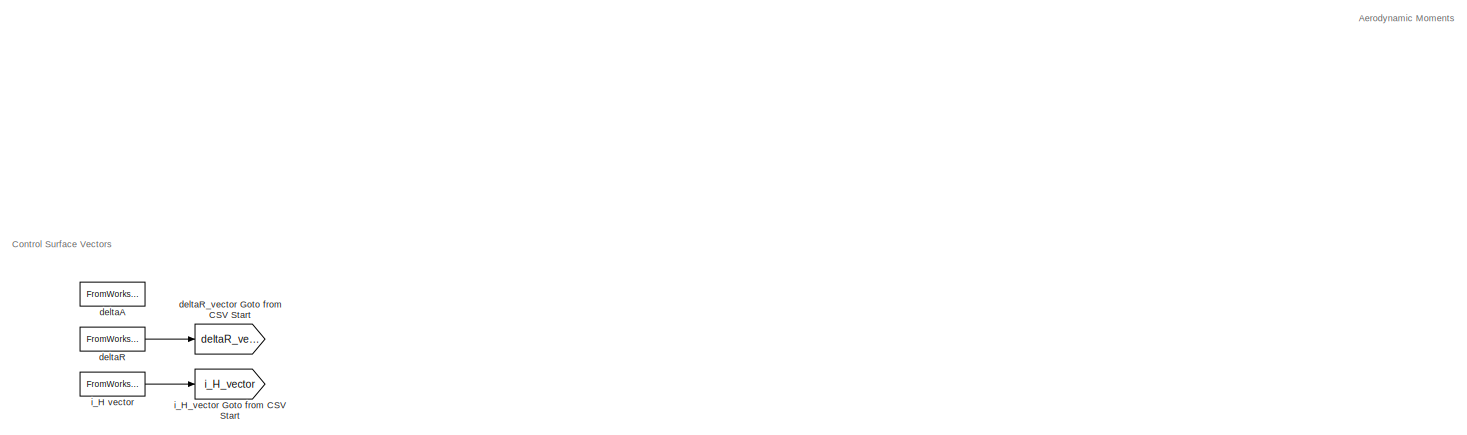
[diagram: root canvas - part 1/5, top center region]
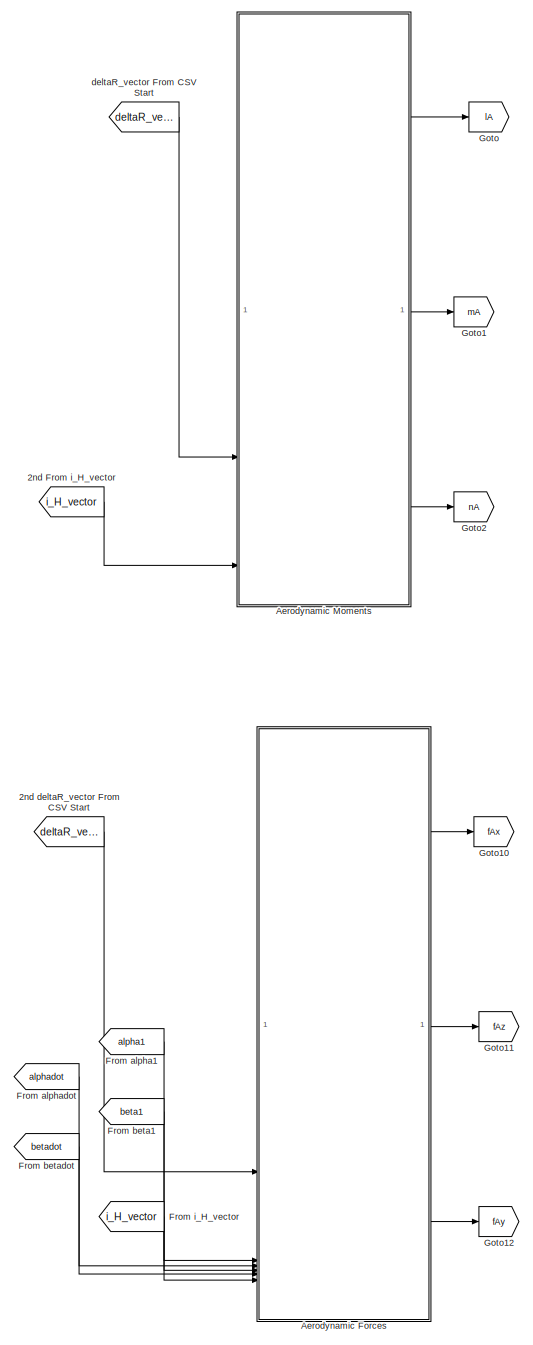
[diagram: root canvas - part 2/5, right side, full height]
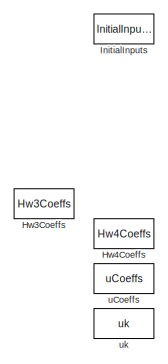
[diagram: root canvas - part 3/5, middle left region]
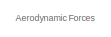
[diagram: root canvas - part 4/5, middle right region]
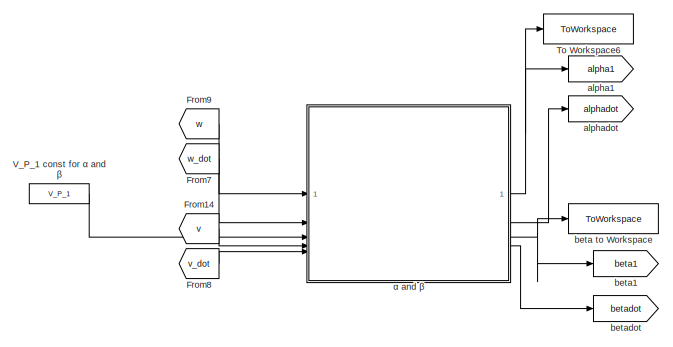
[diagram: root canvas - part 5/5, bottom right region]
MODEL slx_774c7080eb48
KIND model
CONFIG AbsTol = auto
CONFIG EnableMultiTasking = off
CONFIG FixedStep = auto
CONFIG MaxStep = auto
CONFIG MinStep = auto
CONFIG RelTol = 1e-3
CONFIG SampleTimeConstraint = Unconstrained
CONFIG SolverName = VariableStepAuto
CONFIG StartTime = 0.0
CONFIG StopTime = 10.0
BLOCK [From] 2nd From i_H_vector
  GotoTag = i_H_vector
BLOCK [From] 2nd deltaR_vector From CSV Start
  GotoTag = deltaR_vector
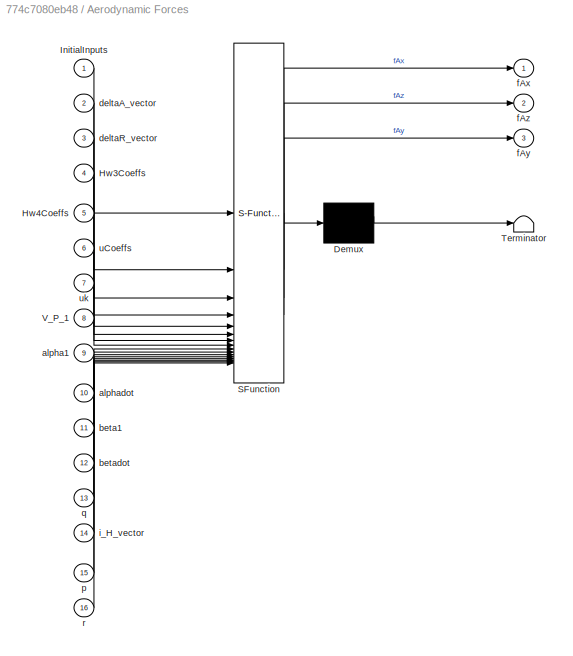
BLOCK [SubSystem] Aerodynamic Forces
  ErrorFcn = Stateflow.Translate.translate
  PermitHierarchicalResolution = ExplicitOnly
  SFBlockType = MATLAB Function
  TreatAsAtomicUnit = on
BLOCK [Demux] Aerodynamic Forces/ Demux 
  Outputs = 1
BLOCK [S-Function] Aerodynamic Forces/ SFunction 
  EnableBusSupport = on
  FunctionName = sf_sfun
  PortCounts = [16 4]
  SFcnIsStateOwnerBlock = off
  SFunctionDeploymentMode = off
  Tag = Stateflow S-Function 13
BLOCK [Terminator] Aerodynamic Forces/ Terminator 
BLOCK [Inport] Aerodynamic Forces/Hw3Coeffs
  Port = 4
BLOCK [Inport] Aerodynamic Forces/Hw4Coeffs
  Port = 5
BLOCK [Inport] Aerodynamic Forces/InitialInputs
BLOCK [Inport] Aerodynamic Forces/V_P_1
  Port = 8
BLOCK [Inport] Aerodynamic Forces/alpha1
  Port = 9
BLOCK [Inport] Aerodynamic Forces/alphadot
  Port = 10
BLOCK [Inport] Aerodynamic Forces/beta1
  Port = 11
BLOCK [Inport] Aerodynamic Forces/betadot
  Port = 12
BLOCK [Inport] Aerodynamic Forces/deltaA_vector
  Port = 2
BLOCK [Inport] Aerodynamic Forces/deltaR_vector
  Port = 3
BLOCK [Outport] Aerodynamic Forces/fAx
BLOCK [Outport] Aerodynamic Forces/fAy
  Port = 3
BLOCK [Outport] Aerodynamic Forces/fAz
  Port = 2
BLOCK [Inport] Aerodynamic Forces/i_H_vector
  Port = 14
BLOCK [Inport] Aerodynamic Forces/p
  Port = 15
BLOCK [Inport] Aerodynamic Forces/q
  Port = 13
BLOCK [Inport] Aerodynamic Forces/r
  Port = 16
BLOCK [Inport] Aerodynamic Forces/uCoeffs
  Port = 6
BLOCK [Inport] Aerodynamic Forces/uk
  Port = 7
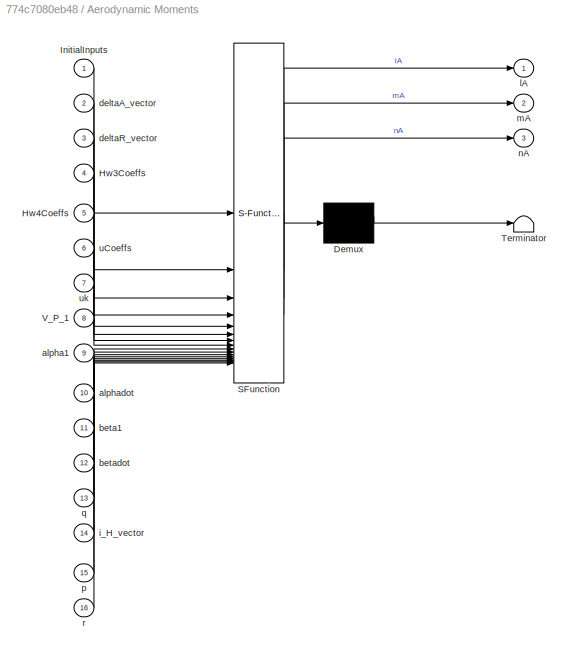
BLOCK [SubSystem] Aerodynamic Moments
  ErrorFcn = Stateflow.Translate.translate
  PermitHierarchicalResolution = ExplicitOnly
  SFBlockType = MATLAB Function
  TreatAsAtomicUnit = on
BLOCK [Demux] Aerodynamic Moments/ Demux 
  Outputs = 1
BLOCK [S-Function] Aerodynamic Moments/ SFunction 
  EnableBusSupport = on
  FunctionName = sf_sfun
  PortCounts = [16 4]
  SFcnIsStateOwnerBlock = off
  SFunctionDeploymentMode = off
  Tag = Stateflow S-Function 3
BLOCK [Terminator] Aerodynamic Moments/ Terminator 
BLOCK [Inport] Aerodynamic Moments/Hw3Coeffs
  Port = 4
BLOCK [Inport] Aerodynamic Moments/Hw4Coeffs
  Port = 5
BLOCK [Inport] Aerodynamic Moments/InitialInputs
BLOCK [Inport] Aerodynamic Moments/V_P_1
  Port = 8
BLOCK [Inport] Aerodynamic Moments/alpha1
  Port = 9
BLOCK [Inport] Aerodynamic Moments/alphadot
  Port = 10
BLOCK [Inport] Aerodynamic Moments/beta1
  Port = 11
BLOCK [Inport] Aerodynamic Moments/betadot
  Port = 12
BLOCK [Inport] Aerodynamic Moments/deltaA_vector
  Port = 2
BLOCK [Inport] Aerodynamic Moments/deltaR_vector
  Port = 3
BLOCK [Inport] Aerodynamic Moments/i_H_vector
  Port = 14
BLOCK [Outport] Aerodynamic Moments/lA
BLOCK [Outport] Aerodynamic Moments/mA
  Port = 2
BLOCK [Outport] Aerodynamic Moments/nA
  Port = 3
BLOCK [Inport] Aerodynamic Moments/p
  Port = 15
BLOCK [Inport] Aerodynamic Moments/q
  Port = 13
BLOCK [Inport] Aerodynamic Moments/r
  Port = 16
BLOCK [Inport] Aerodynamic Moments/uCoeffs
  Port = 6
BLOCK [Inport] Aerodynamic Moments/uk
  Port = 7
BLOCK [From] From alpha1
  GotoTag = alpha1
BLOCK [From] From alphadot
  GotoTag = alphadot
BLOCK [From] From beta1
  GotoTag = beta1
BLOCK [From] From betadot
  GotoTag = betadot
BLOCK [From] From i_H_vector
  GotoTag = i_H_vector
BLOCK [From] From14
  GotoTag = v
BLOCK [From] From7
  GotoTag = w_dot
BLOCK [From] From8
  GotoTag = v_dot
BLOCK [From] From9
  GotoTag = w
BLOCK [Goto] Goto
  GotoTag = lA
BLOCK [Goto] Goto1
  GotoTag = mA
BLOCK [Goto] Goto10
  GotoTag = fAx
BLOCK [Goto] Goto11
  GotoTag = fAz
BLOCK [Goto] Goto12
  GotoTag = fAy
BLOCK [Goto] Goto2
  GotoTag = nA
BLOCK [Constant] Hw3Coeffs
  Value = Hw3Coeffs
BLOCK [Constant] Hw4Coeffs
  Value = Hw4Coeffs
BLOCK [Constant] InitialInputs
  Value = InitialInputs
BLOCK [ToWorkspace] To Workspace6
  MaxDataPoints = inf
  SampleTime = -1
  Save2DSignal = 2-D array (concatenate along first dimension)
  VariableName = alpha1
BLOCK [Constant] V_P_1 const for α and β
  Value = V_P_1
BLOCK [Goto] alpha1
  GotoTag = alpha1
BLOCK [Goto] alphadot
  GotoTag = alphadot
BLOCK [ToWorkspace] beta to Workspace
  MaxDataPoints = inf
  SampleTime = -1
  Save2DSignal = 2-D array (concatenate along first dimension)
  VariableName = beta1
BLOCK [Goto] beta1
  GotoTag = beta1
BLOCK [Goto] betadot
  GotoTag = betadot
BLOCK [FromWorkspace] deltaA 
  OutDataTypeStr = double
  VariableName = deltaA_vector
BLOCK [FromWorkspace] deltaR 
  OutDataTypeStr = double
  VariableName = deltaR_vector
BLOCK [From] deltaR_vector From CSV Start
  GotoTag = deltaR_vector
BLOCK [Goto] deltaR_vector Goto from CSV Start
  GotoTag = deltaR_vector
BLOCK [FromWorkspace] i_H vector 
  VariableName = i_H_vector
BLOCK [Goto] i_H_vector Goto from CSV Start
  GotoTag = i_H_vector
BLOCK [Constant] uCoeffs
  Value = uCoeffs
BLOCK [Constant] uk
  Value = uk
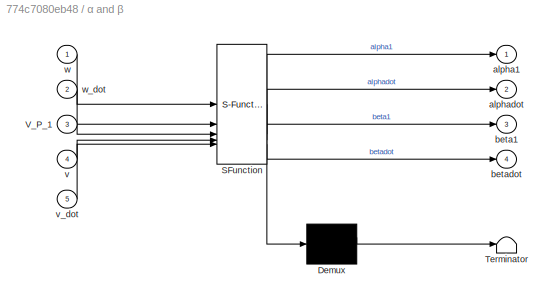
BLOCK [SubSystem] α and β
  ErrorFcn = Stateflow.Translate.translate
  PermitHierarchicalResolution = ExplicitOnly
  SFBlockType = MATLAB Function
  TreatAsAtomicUnit = on
BLOCK [Demux] α and β/ Demux 
  Outputs = 1
BLOCK [S-Function] α and β/ SFunction 
  EnableBusSupport = on
  FunctionName = sf_sfun
  PortCounts = [5 5]
  SFcnIsStateOwnerBlock = off
  SFunctionDeploymentMode = off
  Tag = Stateflow S-Function 1
BLOCK [Terminator] α and β/ Terminator 
BLOCK [Inport] α and β/V_P_1
  Port = 3
BLOCK [Outport] α and β/alpha1
BLOCK [Outport] α and β/alphadot
  Port = 2
BLOCK [Outport] α and β/beta1
  Port = 3
BLOCK [Outport] α and β/betadot
  Port = 4
BLOCK [Inport] α and β/v
  Port = 4
BLOCK [Inport] α and β/v_dot
  Port = 5
BLOCK [Inport] α and β/w
BLOCK [Inport] α and β/w_dot
  Port = 2
ANNOTATION (root): Aerodynamic Forces
ANNOTATION (root): Aerodynamic Moments
ANNOTATION (root): Control Surface Vectors
LINE 2nd From i_H_vector:1 -> Aerodynamic Moments:14
LINE 2nd deltaR_vector From CSV Start:1 -> Aerodynamic Forces:3
LINE Aerodynamic Forces:1 -> Goto10:1
LINE Aerodynamic Forces:2 -> Goto11:1
LINE Aerodynamic Forces:3 -> Goto12:1
LINE Aerodynamic Moments:1 -> Goto:1
LINE Aerodynamic Moments:2 -> Goto1:1
LINE Aerodynamic Moments:3 -> Goto2:1
LINE From alpha1:1 -> Aerodynamic Forces:9
LINE From alphadot:1 -> Aerodynamic Forces:10
LINE From beta1:1 -> Aerodynamic Forces:11
LINE From betadot:1 -> Aerodynamic Forces:12
LINE From i_H_vector:1 -> Aerodynamic Forces:14
LINE From14:1 -> α and β:4
LINE From7:1 -> α and β:2
LINE From8:1 -> α and β:5
LINE From9:1 -> α and β:1
LINE V_P_1 const for α and β:1 -> α and β:3
LINE deltaR :1 -> deltaR_vector Goto from CSV Start:1
LINE deltaR_vector From CSV Start:1 -> Aerodynamic Moments:3
LINE i_H vector :1 -> i_H_vector Goto from CSV Start:1
NET α and β:1 -> To Workspace6:1, alpha1:1
LINE α and β:2 -> alphadot:1
NET α and β:3 -> beta to Workspace:1, beta1:1
LINE α and β:4 -> betadot:1
note: NET lines group one-source signal fan-out (src -> all destinations, sorted); 1:1 wires keep LINE
CHART α and β states=1 transitions=1
  STATE_LABEL 'eML_blk_kernel()'
  STATE_LABEL 'SCRIPT:\nfunction [alpha1, alphadot, beta1, betadot] = fcn(w, w_dot, V_P_1, v, v_dot)\n\nalpha1 = w/V_P_1;\n\nalphadot = w_dot/V_P_1;\n\nbeta1 = v/V_P_1;\n\nbetadot = v_dot/V_P_1;\n\n'
CHART Aerodynamic Moments states=1 transitions=1
  STATE_LABEL 'eML_blk_kernel()'
  STATE_LABEL 'SCRIPT:\nfunction [lA,  mA, nA]  = fcn(InitialInputs, deltaA_vector, deltaR_vector, Hw3Coeffs, Hw4Coeffs, uCoeffs, uk, V_P_1, alpha1, alphadot, beta1, betadot, q, i_H_vector, p, r)\nqbar1 = InitialInputs(1); S_ft2 = InitialInputs(2); c_D_1 = InitialInputs(3); c_L_1 = InitialInputs(4); cbar_ft = InitialInputs(5); c_m_1 = InitialInputs(6); uv = InitialInputs(7); b_ft = InitialInputs(8);\n% deltaA_vecto...<+2546ch>'
CHART Aerodynamic Forces states=1 transitions=1
  STATE_LABEL 'eML_blk_kernel()'
  STATE_LABEL 'SCRIPT:\nfunction [ fAx, fAz,  fAy]  = fcn(InitialInputs, deltaA_vector, deltaR_vector, Hw3Coeffs, Hw4Coeffs, uCoeffs, uk, V_P_1, alpha1, alphadot, beta1, betadot, q, i_H_vector, p, r)\nqbar1 = InitialInputs(1); S_ft2 = InitialInputs(2); c_D_1 = InitialInputs(3); c_L_1 = InitialInputs(4); cbar_ft = InitialInputs(5); c_m_1 = InitialInputs(6); uv = InitialInputs(7); b_ft = InitialInputs(8);\n% deltaA_v...<+2540ch>'
CHART  states=0 transitions=0
CHART  states=0 transitions=0
CHART  states=0 transitions=0
